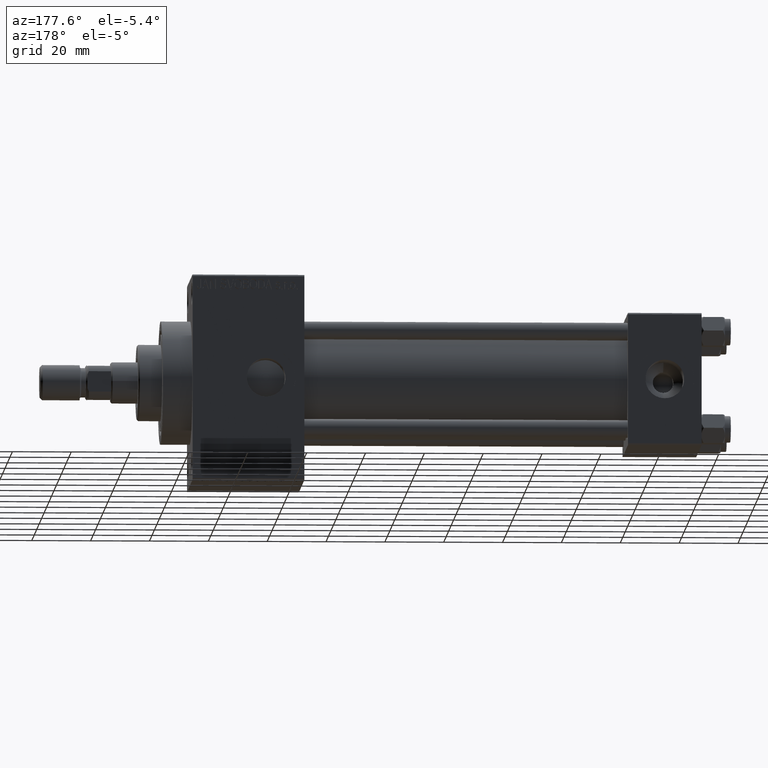
[diagram: clean part render]
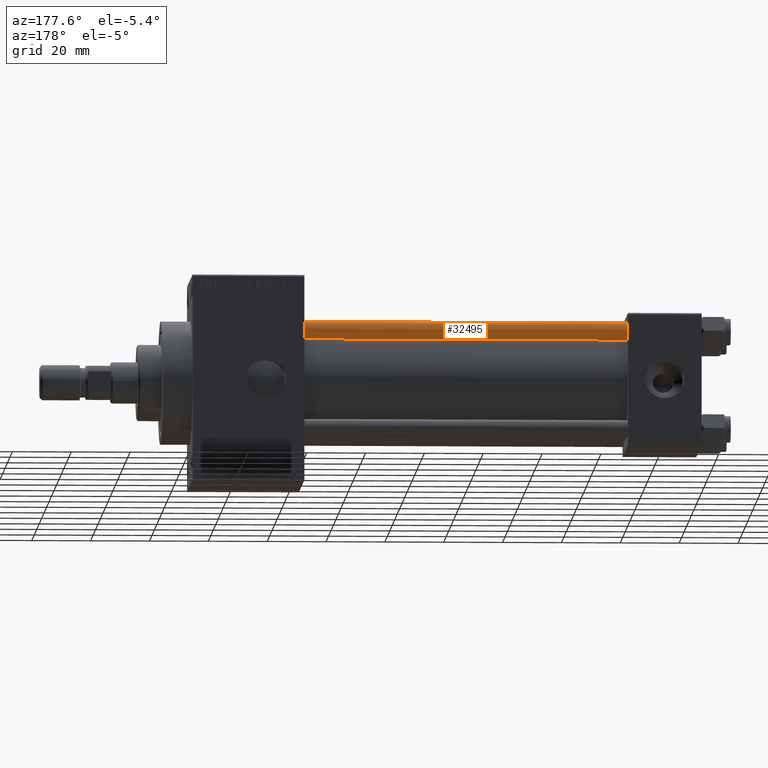
[diagram: same view with one face highlighted and labeled with its STEP entity id]
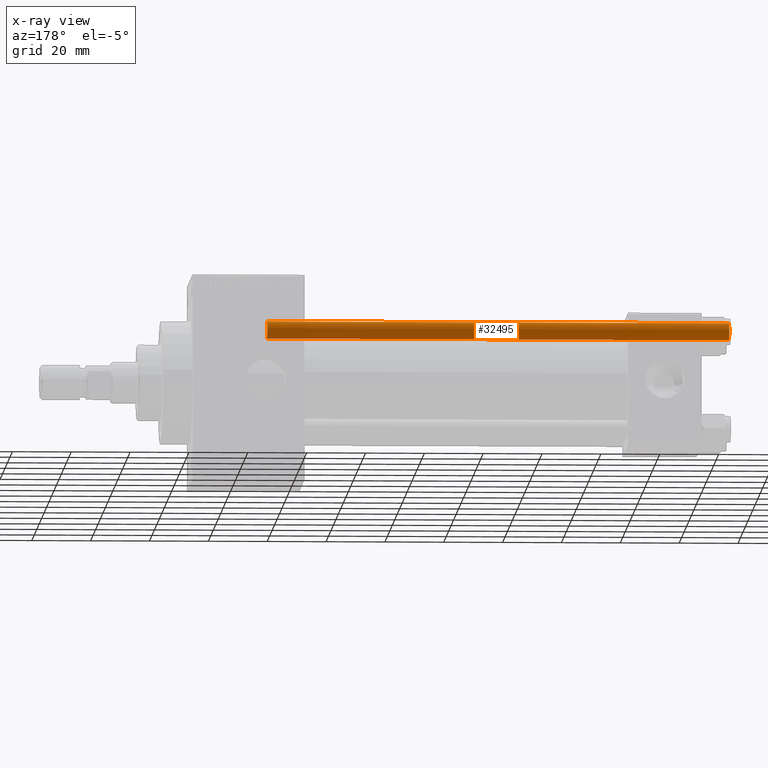
[diagram: x-ray of the same camera — body ghosted, the highlighted face saturated]
A machine part, auxiliary view. The second image highlights one B-rep face of the part: STEP entity #32495.
The next image is the same camera in x-ray: the body ghosted, the highlighted face saturated — about 0% of this face is hidden behind the body in this view.
In plain terms, the highlighted cylindrical surface (edge-blend (fillet) strip) has radius 3 mm, axis along (-1, -0, 0).
Its self-contained STEP definition (entity closure, byte-faithful):
#128 = EDGE_CURVE ( 'NONE', #44071, #1718, #2816, .T. ) ;
#1718 = VERTEX_POINT ( 'NONE', #7358 ) ;
#2816 = CIRCLE ( 'NONE', #44513, 3.000000000000000444 ) ;
#4764 = DIRECTION ( 'NONE',  ( -0.000000000000000000, -0.000000000000000000, -1.000000000000000000 ) ) ;
#7344 = CARTESIAN_POINT ( 'NONE',  ( 3.000000000000000444, 3.673940397442060361E-16, 157.5000000000000000 ) ) ;
#7358 = CARTESIAN_POINT ( 'NONE',  ( -3.000000000000000444, 0.000000000000000000, 0.5000000000000281997 ) ) ;
#7460 = DIRECTION ( 'NONE',  ( 1.000000000000000000, 0.000000000000000000, 0.000000000000000000 ) ) ;
#7652 = AXIS2_PLACEMENT_3D ( 'NONE', #20221, #4764, #38605 ) ;
#8063 = AXIS2_PLACEMENT_3D ( 'NONE', #11086, #26780, #7460 ) ;
#9268 = EDGE_CURVE ( 'NONE', #42054, #1718, #26039, .T. ) ;
#11064 = EDGE_CURVE ( 'NONE', #31683, #44071, #42923, .T. ) ;
#11086 = CARTESIAN_POINT ( 'NONE',  ( 0.000000000000000000, 0.000000000000000000, 157.5000000000000000 ) ) ;
#13576 = EDGE_LOOP ( 'NONE', ( #21053, #41029, #38864, #23627 ) ) ;
#13857 = VECTOR ( 'NONE', #20685, 1000.000000000000000 ) ;
#16581 = CYLINDRICAL_SURFACE ( 'NONE', #7652, 3.000000000000000444 ) ;
#17681 = VECTOR ( 'NONE', #33537, 1000.000000000000000 ) ;
#19018 = CARTESIAN_POINT ( 'NONE',  ( -3.000000000000000444, 0.000000000000000000, 158.0000000000000000 ) ) ;
#20221 = CARTESIAN_POINT ( 'NONE',  ( 0.000000000000000000, 0.000000000000000000, 158.0000000000000000 ) ) ;
#20685 = DIRECTION ( 'NONE',  ( -0.000000000000000000, -0.000000000000000000, -1.000000000000000000 ) ) ;
#21053 = ORIENTED_EDGE ( 'NONE', *, *, #45119, .T. ) ;
#21890 = CARTESIAN_POINT ( 'NONE',  ( 3.000000000000000444, 3.673940397442060361E-16, 0.5000000000000281997 ) ) ;
#21956 = CIRCLE ( 'NONE', #8063, 3.000000000000000444 ) ;
#23627 = ORIENTED_EDGE ( 'NONE', *, *, #9268, .F. ) ;
#26039 = LINE ( 'NONE', #19018, #17681 ) ;
#26776 = DIRECTION ( 'NONE',  ( 1.000000000000000000, 0.000000000000000000, 0.000000000000000000 ) ) ;
#26780 = DIRECTION ( 'NONE',  ( 0.000000000000000000, 0.000000000000000000, -1.000000000000000000 ) ) ;
#31683 = VERTEX_POINT ( 'NONE', #7344 ) ;
#32495 = ADVANCED_FACE ( 'NONE', ( #45617 ), #16581, .T. ) ;
#33537 = DIRECTION ( 'NONE',  ( -0.000000000000000000, -0.000000000000000000, -1.000000000000000000 ) ) ;
#34045 = CARTESIAN_POINT ( 'NONE',  ( 0.000000000000000000, 0.000000000000000000, 0.5000000000000281997 ) ) ;
#34710 = CARTESIAN_POINT ( 'NONE',  ( 3.000000000000000444, 3.673940397442060361E-16, 158.0000000000000000 ) ) ;
#38605 = DIRECTION ( 'NONE',  ( -1.000000000000000000, 0.000000000000000000, 0.000000000000000000 ) ) ;
#38864 = ORIENTED_EDGE ( 'NONE', *, *, #128, .T. ) ;
#41029 = ORIENTED_EDGE ( 'NONE', *, *, #11064, .T. ) ;
#42054 = VERTEX_POINT ( 'NONE', #42989 ) ;
#42923 = LINE ( 'NONE', #34710, #13857 ) ;
#42989 = CARTESIAN_POINT ( 'NONE',  ( -3.000000000000000444, 0.000000000000000000, 157.5000000000000000 ) ) ;
#44071 = VERTEX_POINT ( 'NONE', #21890 ) ;
#44513 = AXIS2_PLACEMENT_3D ( 'NONE', #34045, #45155, #26776 ) ;
#45119 = EDGE_CURVE ( 'NONE', #42054, #31683, #21956, .T. ) ;
#45155 = DIRECTION ( 'NONE',  ( -0.000000000000000000, -0.000000000000000000, 1.000000000000000000 ) ) ;
#45617 = FACE_OUTER_BOUND ( 'NONE', #13576, .T. ) ;